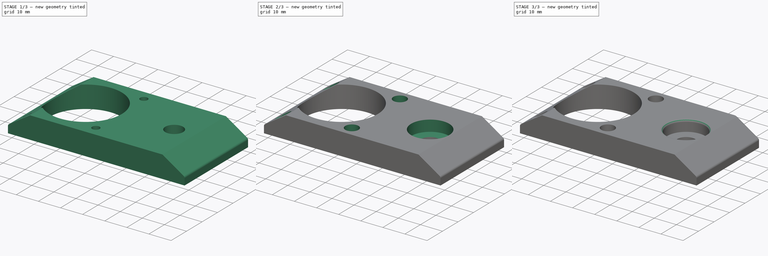
[diagram: build sequence overview — one tinted view per stage of 3, left to right]
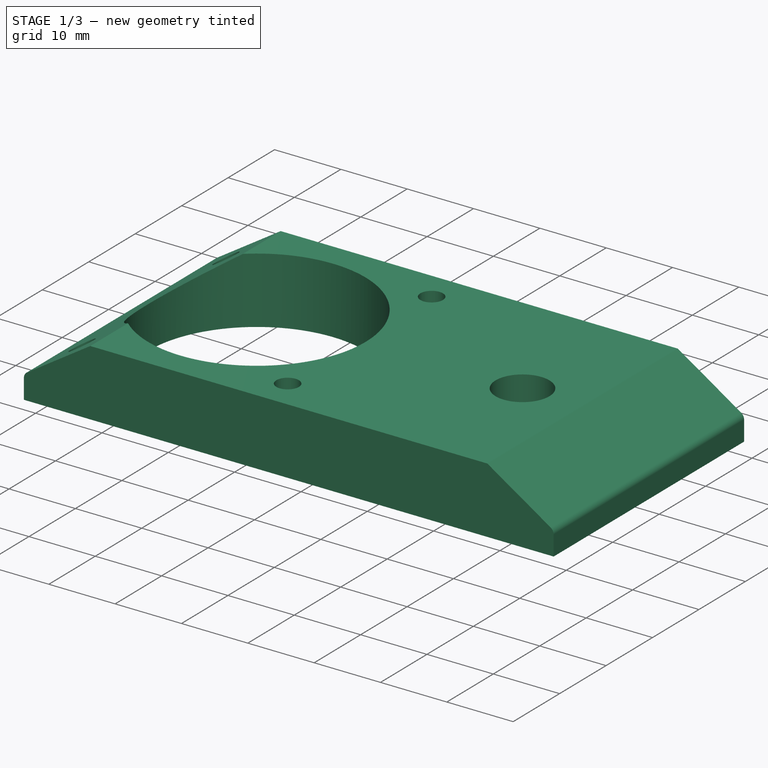
[diagram: stage 1 of 3 — iso view after this stage's code; geometry added in this stage tinted green]
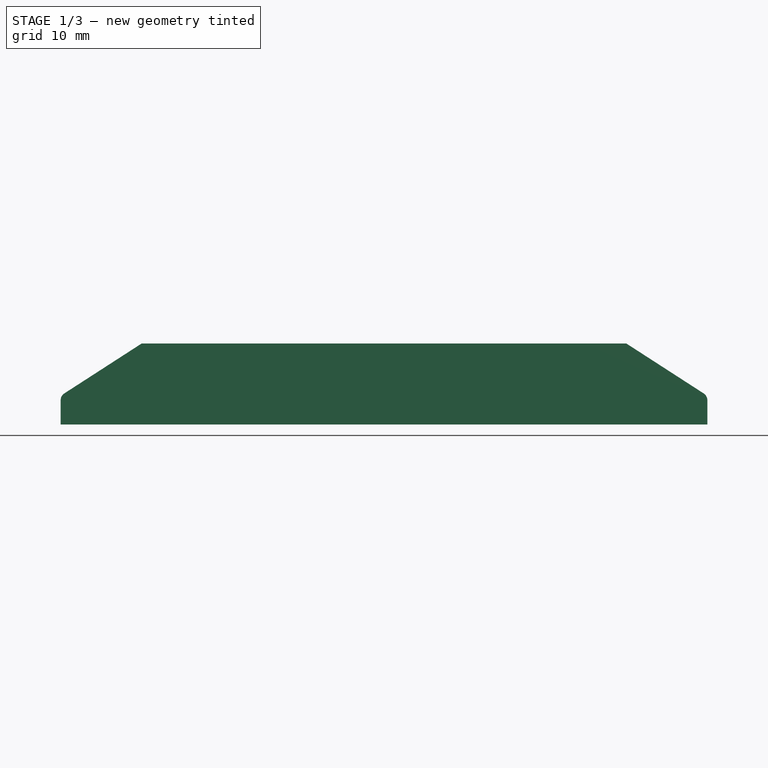
[diagram: stage 1 of 3 — front view after this stage's code; geometry added in this stage tinted green]
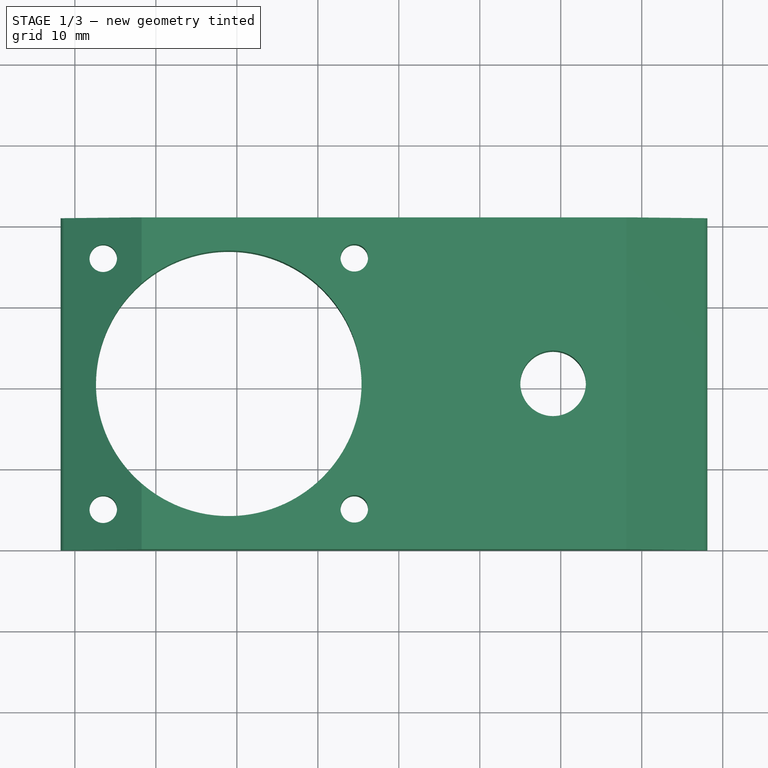
[diagram: stage 1 of 3 — top view after this stage's code; geometry added in this stage tinted green]
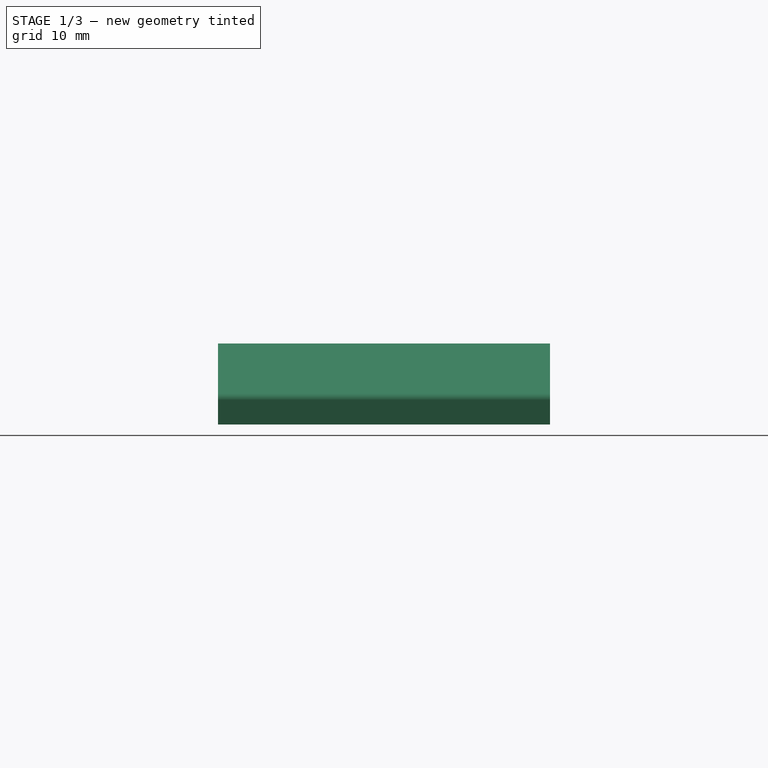
[diagram: stage 1 of 3 — right view after this stage's code; geometry added in this stage tinted green]
FCSTD DOCUMENT  (FreeCAD 0.18R)
Label: y-stepper-mount-hz
License: All rights reserved
LicenseURL: http://en.wikipedia.org/wiki/All_rights_reserved
objects: Part::Feature×4, Sketcher::SketchObject×3, PartDesign::Pocket×2, PartDesign::Fillet×2, PartDesign::Pad×1, PartDesign::Body×1
note: 16 computed .brp shape members not serialized (recipe doc carries the construction recipe); baked Part::Feature solids carry a one-line shape summary decoded from their .brp

FEATURE [Part::Feature] y_axis_rod_mount
  Placement = pos=(0,-82.2653,0) rot=(0,0,1;3.14159rad)
  shape: bbox 38.1 x 62 x 15.5 mm, 45 faces (baked)
FEATURE [Part::Feature] stepper_timing_gear
  Placement = pos=(-20.93,20.3,-46) rot=(0,0,1;0rad)
  shape: bbox 41.86 x 40.63 x 69.5 mm, 87 faces (baked)
FEATURE [Part::Feature] _515_extrusion_160_000mm
  Placement = pos=(-127,90.5,-76.25) rot=(1,0,0;1.5708rad)
  shape: bbox 38.1 x 160 x 38.1 mm, 113 faces (baked)
FEATURE [Sketcher::SketchObject] Sketch
  MapMode = 5
  Placement = pos=(0,0,0) rot=(1,0,0;1.5708rad)
  Support = -> [XZ_Plane]
  sketch-geometry (9):
    g0: LineSegment StartX=28.1 StartY=10 StartZ=0 EndX=-31.76 EndY=10 EndZ=0
    g1: LineSegment StartX=28.1 StartY=10 StartZ=0 EndX=37.6423 EndY=3.84016 EndZ=0
    g2: LineSegment StartX=38.1 StartY=0 StartZ=0 EndX=38.1 EndY=3 EndZ=0
    g3: ArcOfCircle CenterX=37.1 CenterY=3 CenterZ=0 NormalX=0 NormalY=0 NormalZ=1 AngleXU=0 Radius=1 StartAngle=1e-16 EndAngle=0.997572
    g4: LineSegment StartX=-41.76 StartY=0 StartZ=0 EndX=0 EndY=0 EndZ=0
    g5: LineSegment StartX=-41.76 StartY=0 StartZ=0 EndX=-41.76 EndY=3 EndZ=0
    g6: LineSegment StartX=-31.76 StartY=10 StartZ=0 EndX=-41.3023 EndY=3.84016 EndZ=0
    g7: ArcOfCircle CenterX=-40.76 CenterY=3 CenterZ=0 NormalX=0 NormalY=0 NormalZ=1 AngleXU=0 Radius=1 StartAngle=2.14402 EndAngle=3.14159
    g8: LineSegment StartX=0 StartY=10.0002 StartZ=0 EndX=10 EndY=10.0002 EndZ=0
  constraints (23):
    c: PointOnObject(g2,g-1)
    c: DistanceX(g-1,g2) = 38.1
    c: Horizontal(g0)
    c: DistanceY(g-1,g0) = 10
    c: DistanceX(g0,g2) = 10
    c: Coincident(g1,g0)
    c: Vertical(g2)
    c: Tangent(g1,g3) = 1.5708
    c: Tangent(g2,g3) = -1.5708
    c: DistanceX(g3,g2) = 1
    c: DistanceY(g2,g2) = 3
    c: PointOnObject(g4,g-1)
    c: DistanceX(g4,g0) = 10
    c: Coincident(g5,g4)
    c: Vertical(g5)
    c: Coincident(g6,g0)
    c: Tangent(g6,g7) = -1.5708
    c: Tangent(g5,g7) = 1.5708
    c: DistanceY(g5,g5) = 3
    c: DistanceX(g5,g7) = 1
    c: DistanceX(g4,g-1) = 41.76
    c: PointOnObject(g8,g-2)
    c: DistanceX(g8,g8) = 10
FEATURE [PartDesign::Pad] Pad
  Length = 41
  Length2 = 100
  Placement = pos=(0,0,0) rot=(1,0,0;1.5708rad)
  Profile = -> Sketch
  Reversed = true
  Type = 0
FEATURE [Sketcher::SketchObject] Sketch001
  MapMode = 5
  Support = -> [XY_Plane]
  sketch-geometry (6):
    g0: Circle CenterX=19.05 CenterY=20.5 CenterZ=0 NormalX=0 NormalY=0 NormalZ=1 AngleXU=0 Radius=4.05
    g1: Circle CenterX=-5.5 CenterY=36 CenterZ=0 NormalX=0 NormalY=0 NormalZ=1 AngleXU=0 Radius=1.7
    g2: Circle CenterX=-36.5 CenterY=36 CenterZ=0 NormalX=0 NormalY=0 NormalZ=1 AngleXU=0 Radius=1.7
    g3: Circle CenterX=-36.5 CenterY=5 CenterZ=0 NormalX=0 NormalY=0 NormalZ=1 AngleXU=0 Radius=1.7
    g4: Circle CenterX=-5.5 CenterY=5 CenterZ=0 NormalX=0 NormalY=0 NormalZ=1 AngleXU=0 Radius=1.7
    g5: Circle CenterX=-21 CenterY=20.5 CenterZ=0 NormalX=0 NormalY=0 NormalZ=1 AngleXU=0 Radius=16.4
  constraints (18):
    c: Diameter(g2) = 3.4
    c: Equal(g2,g1)
    c: Equal(g2,g3)
    c: Equal(g2,g4)
    c: DistanceX(g2,g3) = 0
    c: DistanceX(g1,g4) = 0
    c: DistanceY(g3,g2) = 31
    c: DistanceX(g5,g-1) = 21
    c: DistanceY(g-1,g5) = 20.5
    c: DistanceX(g5,g1) = 15.5
    c: DistanceY(g5,g1) = 15.5
    c: DistanceY(g5,g2) = 15.5
    c: DistanceX(g2,g5) = 15.5
    c: Diameter(g5) = 32.8
    c: DistanceY(g-1,g0) = 20.5
    c: DistanceX(g-1,g0) = 19.05
    c: DistanceY(g4,g5) = 15.5
    c: Diameter(g0) = 8.1
FEATURE [Part::Feature] stepper_nema17
  Placement = pos=(-21,20.5,-46) rot=(0,0,1;0rad)
  shape: bbox 41.86 x 40.63 x 69.5 mm, 80 faces (baked)
FEATURE [PartDesign::Pocket] Pocket
  BaseFeature = -> Pad
  Length = 5
  Length2 = 100
  Placement = pos=(0,0,0) rot=(1,0,0;1.5708rad)
  Profile = -> Sketch001
  Reversed = true
  Type = 1
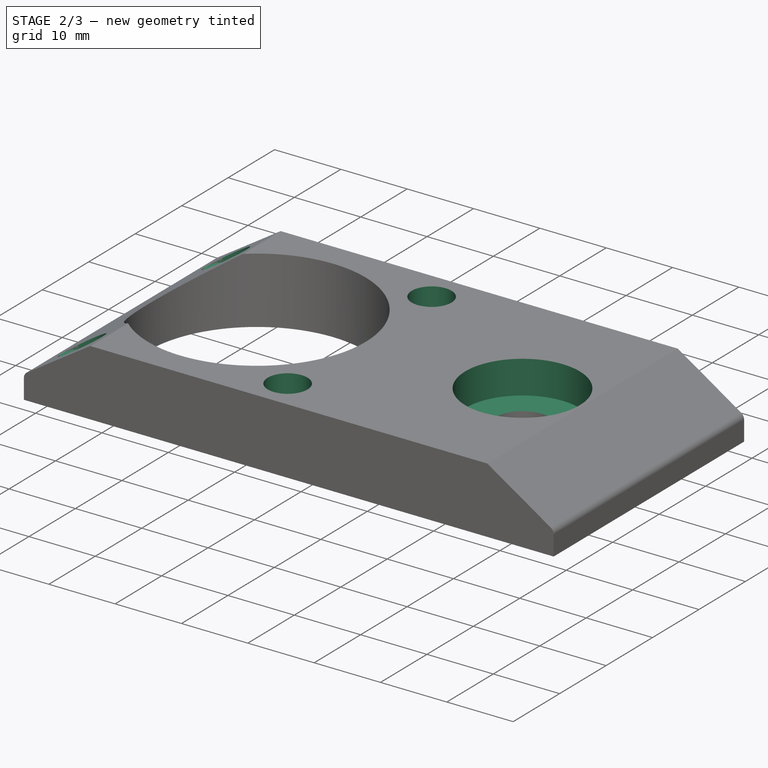
[diagram: stage 2 of 3 — iso view after this stage's code; geometry added in this stage tinted green]
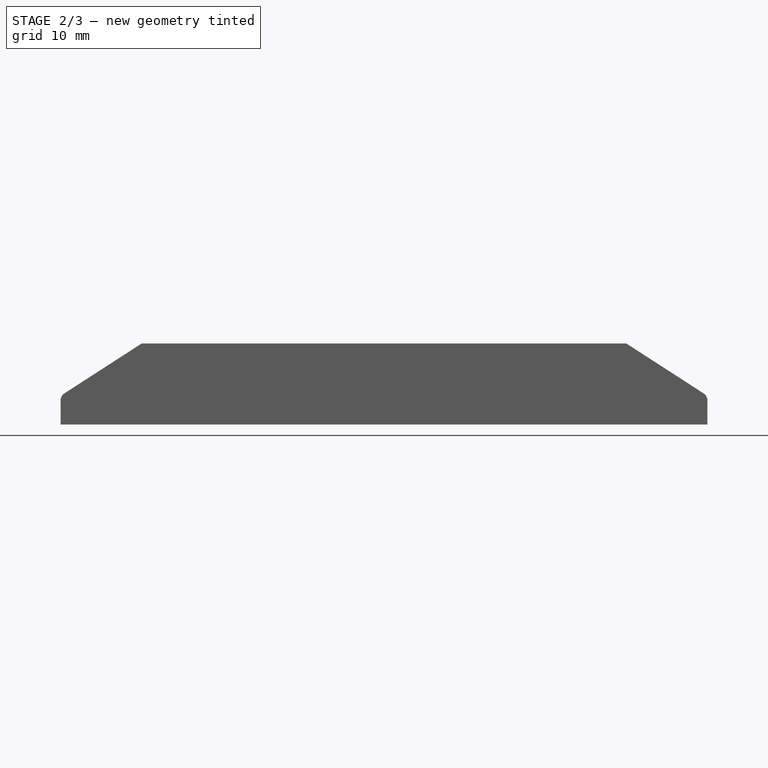
[diagram: stage 2 of 3 — front view after this stage's code; geometry added in this stage tinted green]
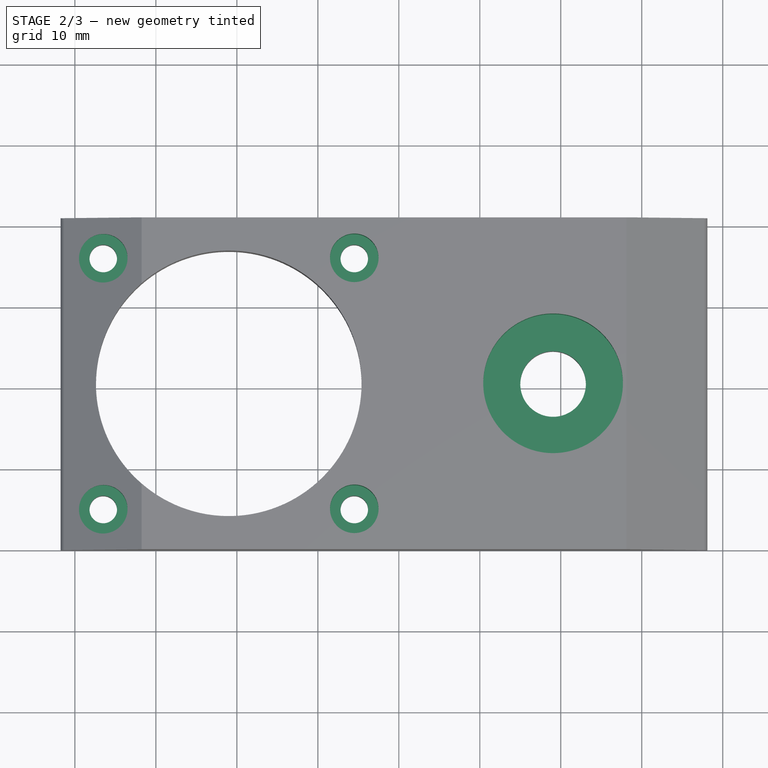
[diagram: stage 2 of 3 — top view after this stage's code; geometry added in this stage tinted green]
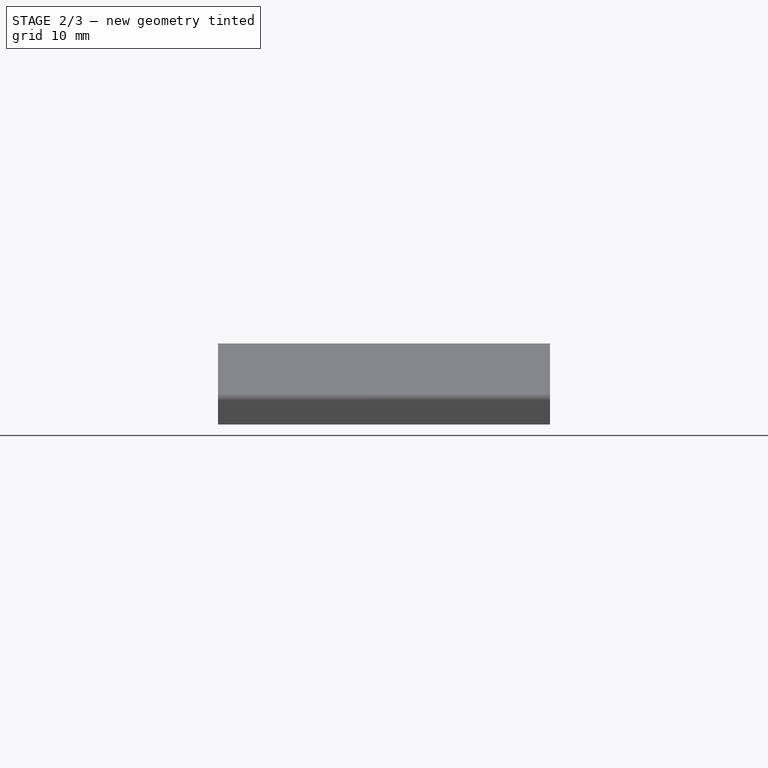
[diagram: stage 2 of 3 — right view after this stage's code; geometry added in this stage tinted green]
FEATURE [Sketcher::SketchObject] Sketch002
  AttachmentOffset = pos=(0,0,10) rot=(0,0,1;0rad)
  MapMode = 5
  Placement = pos=(0,0,10) rot=(0,0,1;0rad)
  Support = -> [XY_Plane]
  sketch-geometry (6):
    g0: Circle CenterX=19.05 CenterY=20.5 CenterZ=0 NormalX=0 NormalY=0 NormalZ=1 AngleXU=0 Radius=8.625
    g1: GeomPoint X=-21 Y=20.5 Z=0
    g2: Circle CenterX=-36.5 CenterY=36 CenterZ=0 NormalX=0 NormalY=0 NormalZ=1 AngleXU=0 Radius=3
    g3: Circle CenterX=-5.5 CenterY=36 CenterZ=0 NormalX=0 NormalY=0 NormalZ=1 AngleXU=0 Radius=3
    g4: Circle CenterX=-5.5 CenterY=5 CenterZ=0 NormalX=0 NormalY=0 NormalZ=1 AngleXU=0 Radius=3
    g5: Circle CenterX=-36.5 CenterY=5 CenterZ=0 NormalX=0 NormalY=0 NormalZ=1 AngleXU=0 Radius=3
  constraints (17):
    c: Diameter(g0) = 17.25
    c: DistanceY(g-1,g0) = 20.5
    c: DistanceX(g-1,g0) = 19.05
    c: DistanceY(g1,g0) = 0
    c: DistanceX(g1,g-1) = 21
    c: Diameter(g2) = 6
    c: Equal(g2,g3)
    c: Equal(g2,g5)
    c: Equal(g2,g4)
    c: DistanceY(g1,g2) = 15.5
    c: DistanceX(g2,g1) = 15.5
    c: DistanceX(g1,g3) = 15.5
    c: DistanceX(g5,g1) = 15.5
    c: DistanceX(g1,g4) = 15.5
    c: DistanceY(g5,g1) = 15.5
    c: DistanceY(g4,g1) = 15.5
    c: DistanceY(g1,g3) = 15.5
FEATURE [PartDesign::Pocket] Pocket001
  BaseFeature = -> Pocket
  Length = 5
  Length2 = 100
  Placement = pos=(0,0,0) rot=(1,0,0;1.5708rad)
  Profile = -> Sketch002
  Type = 0
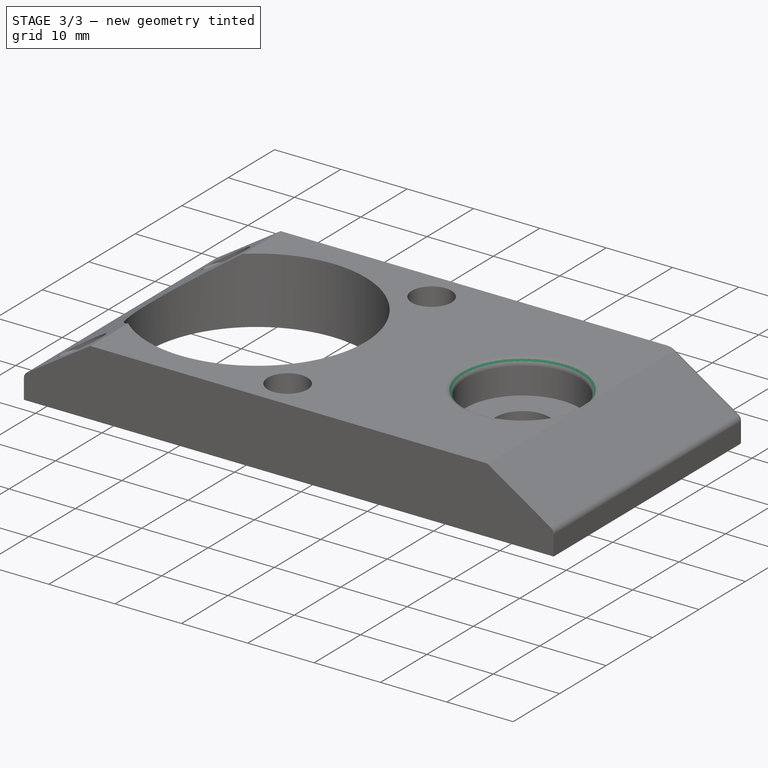
[diagram: stage 3 of 3 — iso view after this stage's code; geometry added in this stage tinted green]
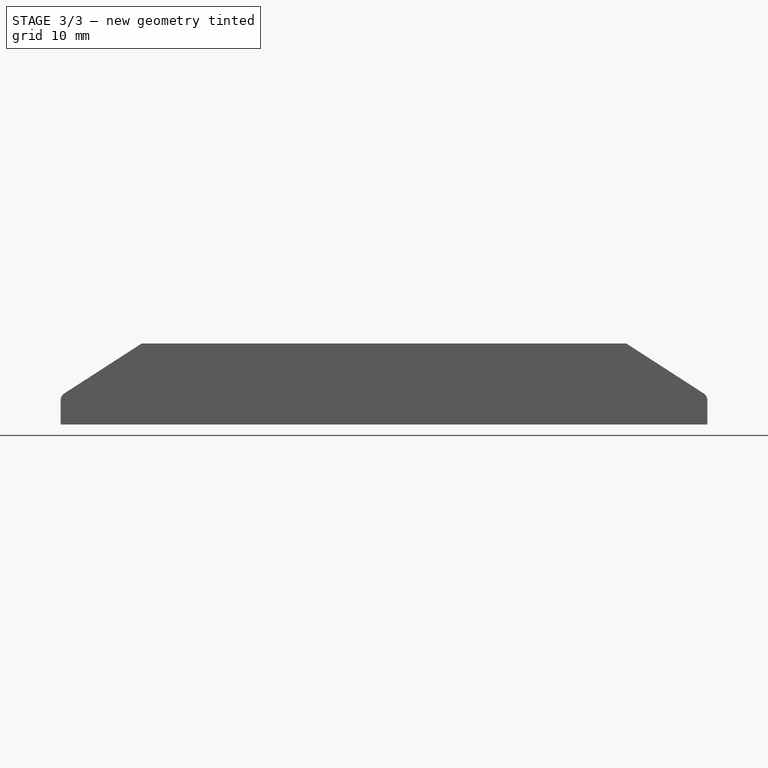
[diagram: stage 3 of 3 — front view after this stage's code; geometry added in this stage tinted green]
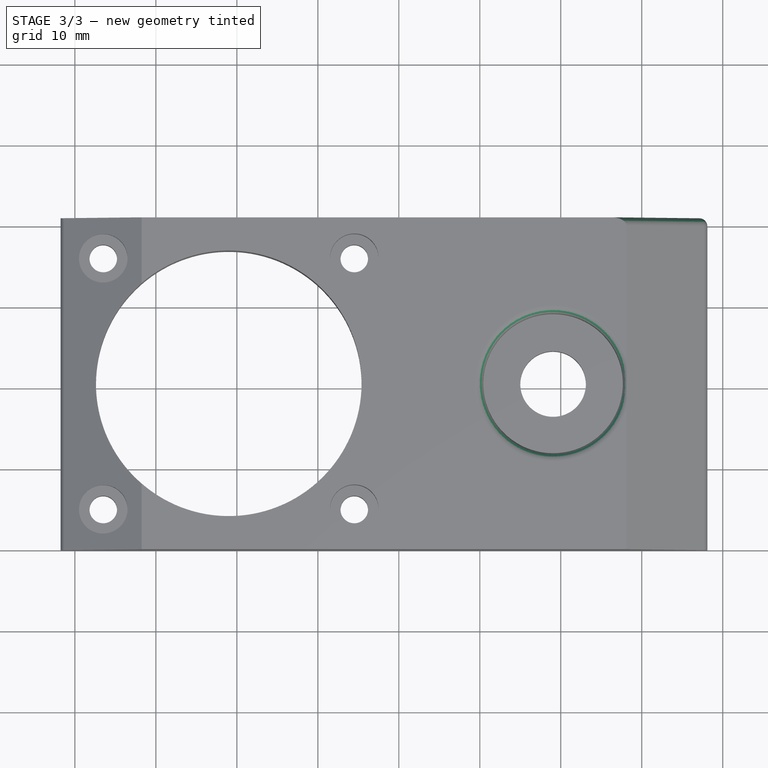
[diagram: stage 3 of 3 — top view after this stage's code; geometry added in this stage tinted green]
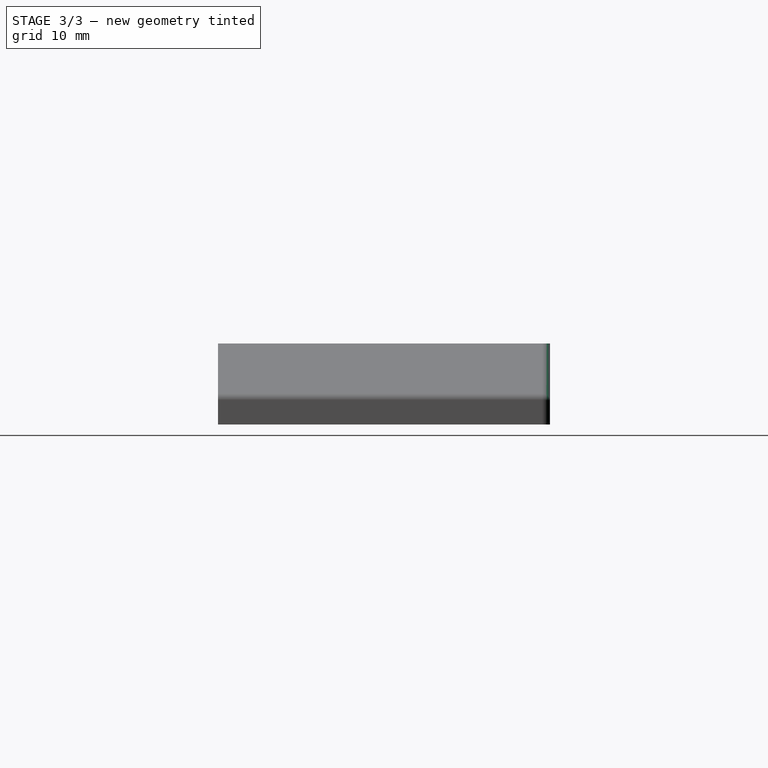
[diagram: stage 3 of 3 — right view after this stage's code; geometry added in this stage tinted green]
FEATURE [PartDesign::Fillet] Fillet
  Base = -> Pocket001 [Edge49]
  BaseFeature = -> Pocket001
  Placement = pos=(0,0,0) rot=(1,0,0;1.5708rad)
  Radius = 1
FEATURE [PartDesign::Fillet] Fillet001
  Base = -> Fillet [Edge15,Edge16,Edge12,Edge14,Edge39]
  BaseFeature = -> Fillet
  Placement = pos=(0,0,0) rot=(1,0,0;1.5708rad)
  Radius = 1
FEATURE [PartDesign::Body] Body  label="y-stepper-mount-hz"
  Group = -> [Sketch,Pad,Sketch001,Pocket,Sketch002,Pocket001,Fillet,Fillet001]
  Origin = -> Origin
  Tip = -> Fillet001
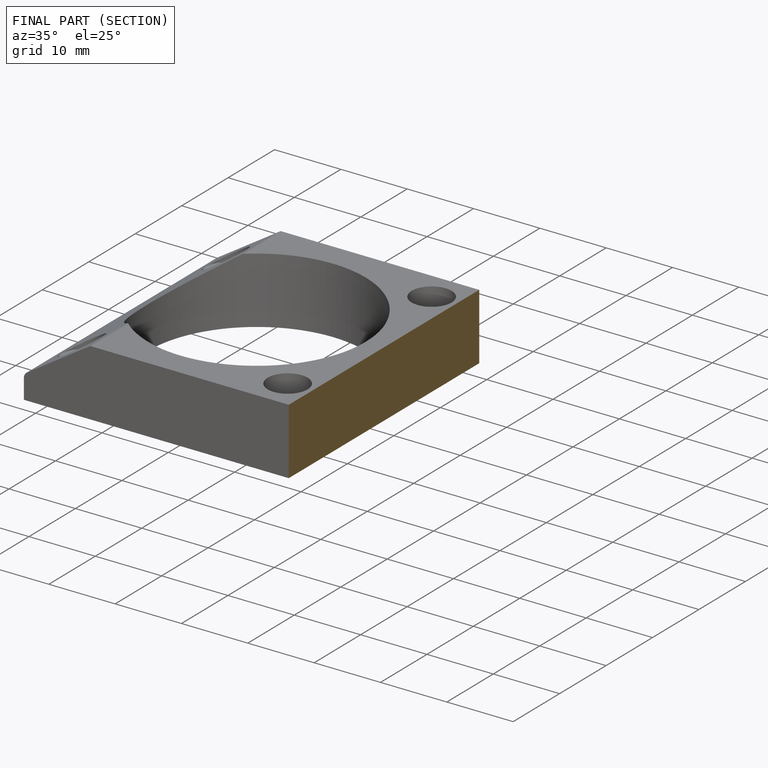
[diagram: finished part — half-section view (interior)]
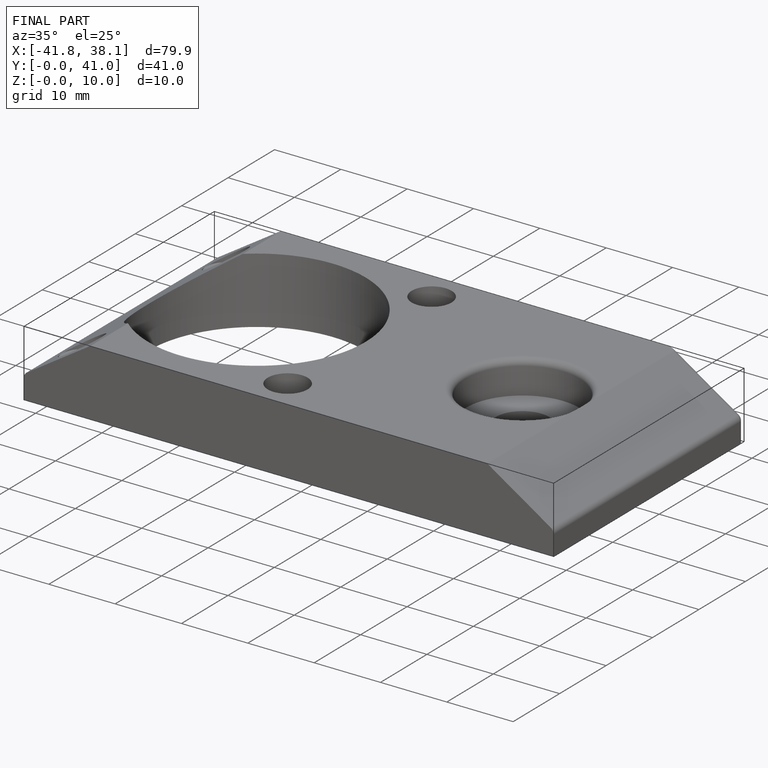
[diagram: finished part — iso view with bounding-box wireframe]
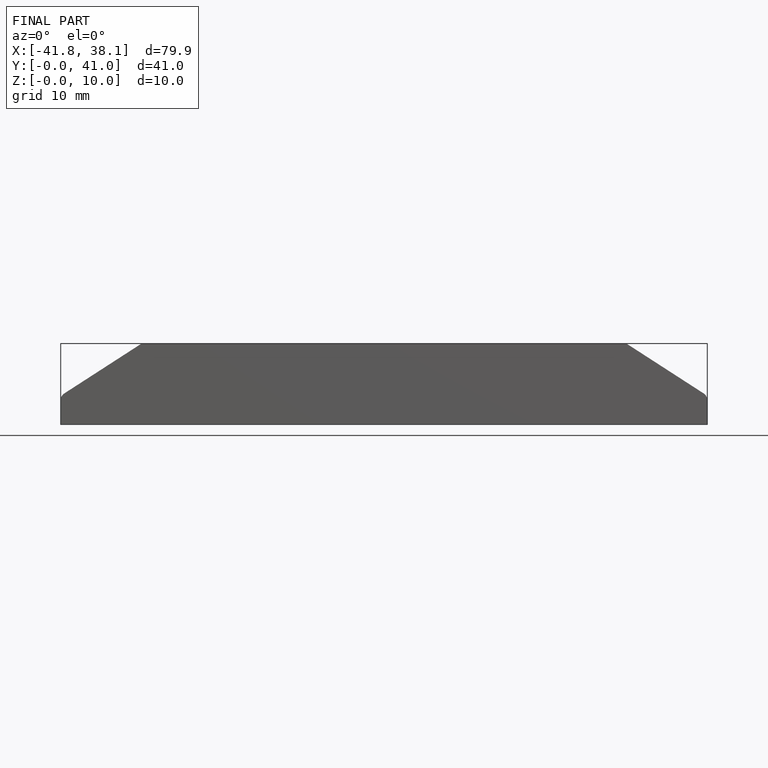
[diagram: finished part — front view with bounding-box wireframe]
